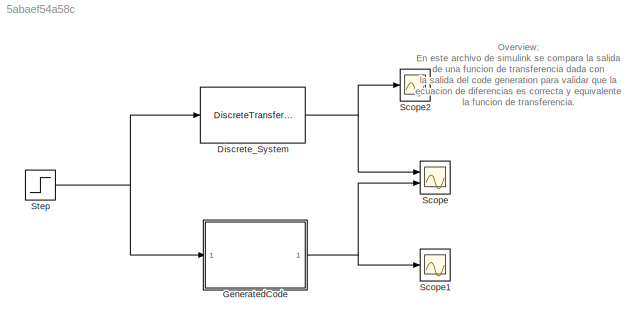
MODEL slx_5abaef54a58c
KIND model
CONFIG AbsTol = auto
CONFIG EnableMultiTasking = off
CONFIG FixedStep = auto
CONFIG MaxStep = auto
CONFIG MinStep = auto
CONFIG RelTol = 1e-3
CONFIG SampleTimeConstraint = Unconstrained
CONFIG Solver = VariableStepAuto
CONFIG SolverName = VariableStepAuto
CONFIG StartTime = 0.0
CONFIG StopTime = 40
BLOCK [DiscreteTransferFcn] Discrete_System
  Denominator = Hz.Denominator{1}
  InputPortMap = u0
  Numerator = Hz.Numerator{1}
  Ports = [1, 1]
  SampleTime = .1
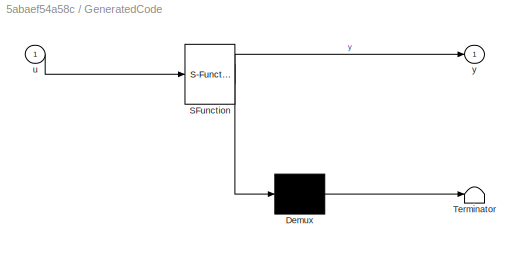
BLOCK [SubSystem] GeneratedCode
  ErrorFcn = Stateflow.Translate.translate
  PermitHierarchicalResolution = ExplicitOnly
  Ports = [1, 1]
  RequestExecContextInheritance = off
  SFBlockType = MATLAB Function
  SystemSampleTime = .1
  TreatAsAtomicUnit = on
  Variant = off
BLOCK [Demux] GeneratedCode/ Demux 
  Outputs = 1
  Ports = [1, 1]
BLOCK [S-Function] GeneratedCode/ SFunction 
  EnableBusSupport = on
  FunctionName = sf_sfun
  PortCounts = [1 2]
  Ports = [1, 2]
  SFcnIsStateOwnerBlock = off
  SFunctionDeploymentMode = off
  Tag = Stateflow S-Function CodeGenValidation 2
BLOCK [Terminator] GeneratedCode/ Terminator 
BLOCK [Inport] GeneratedCode/u
  IconDisplay = Port number
BLOCK [Outport] GeneratedCode/y
  IconDisplay = Port number
BLOCK [Scope] Scope
  NumInputPorts = 2
  Ports = [2]
  ScopeSpecificationString = Simulink.scopes.TimeScopeBlockCfg('CurrentConfiguration', extmgr.ConfigurationSet(extmgr.Configuration('Core','General UI',true),extmgr.Configuration('Core','Source UI',true),extmgr.Configuration('Sources','WiredSimulink',true),extmgr.Configuration('Visuals','Time Domain',true,'SerializedDisplays',{struct('MinYLimReal','-1.40478','MaxYLimReal','12.64306','YLabelReal','','MinYLimMag','0.00000','Max...<+1451ch>
BLOCK [Scope] Scope1
  NumInputPorts = 1
  Ports = [1]
  ScopeSpecificationString = Simulink.scopes.TimeScopeBlockCfg('CurrentConfiguration', extmgr.ConfigurationSet(extmgr.Configuration('Core','General UI',true),extmgr.Configuration('Core','Source UI',true),extmgr.Configuration('Sources','WiredSimulink',true,'DataLoggingVariableName','ScopeData1'),extmgr.Configuration('Visuals','Time Domain',true,'SerializedDisplays',{struct('MinYLimReal','-1.40478','MaxYLimReal','12.64306','YLa...<+1376ch>
BLOCK [Scope] Scope2
  NumInputPorts = 1
  Ports = [1]
  ScopeSpecificationString = Simulink.scopes.TimeScopeBlockCfg('CurrentConfiguration', extmgr.ConfigurationSet(extmgr.Configuration('Core','General UI',true),extmgr.Configuration('Core','Source UI',true),extmgr.Configuration('Sources','WiredSimulink',true,'DataLoggingVariableName','ScopeData1'),extmgr.Configuration('Visuals','Time Domain',true,'SerializedDisplays',{struct('MinYLimReal','9.90722','MaxYLimReal','11.84753','YLab...<+1424ch>
BLOCK [Step] Step
  SampleTime = 0
ANNOTATION (root): Overview: En este archivo de simulink se compara la salida de una funcion de transferencia dada con la salida del code generation para validar que la ecuacion de diferencias es correcta y equivalente la funcion de transferencia.
NET Discrete_System:1 -> Scope2:1, Scope:1
NET GeneratedCode:1 -> Scope1:1, Scope:2
NET Step:1 -> Discrete_System:1, GeneratedCode:1
note: NET lines group one-source signal fan-out (src -> all destinations, sorted); 1:1 wires keep LINE
CHART GeneratedCode states=1 transitions=1
  STATE_LABEL 'eML_blk_kernel()'
  STATE_LABEL 'SCRIPT:\nfunction y = fcn(u)\npersistent U;\nif isempty(U)\n\t U = zeros(1, 3);\nend\npersistent Y;\nif isempty(Y)\n\t Y = zeros(1, 2);\nend\nU = [u U(1:end-1)];\ny_1 = (3867417694454701*U(2))/36028797018963968 - (6329353517423041*U(3))/72057594037927936 + (4389385923699487*Y(1))/2251799813685248 - (1070989120431317*Y(2))/1125899906842624;\nY = [y_1 Y(1:end-1)];\ny = y_1;\n'
